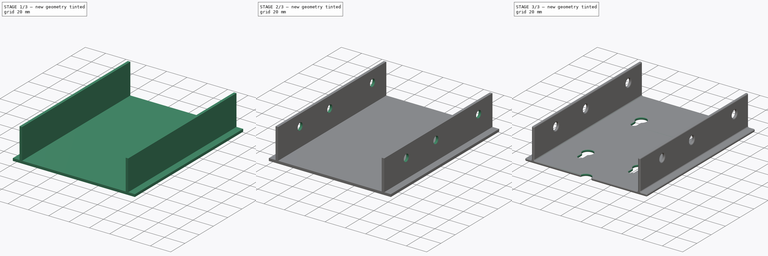
[diagram: build sequence overview — one tinted view per stage of 3, left to right]
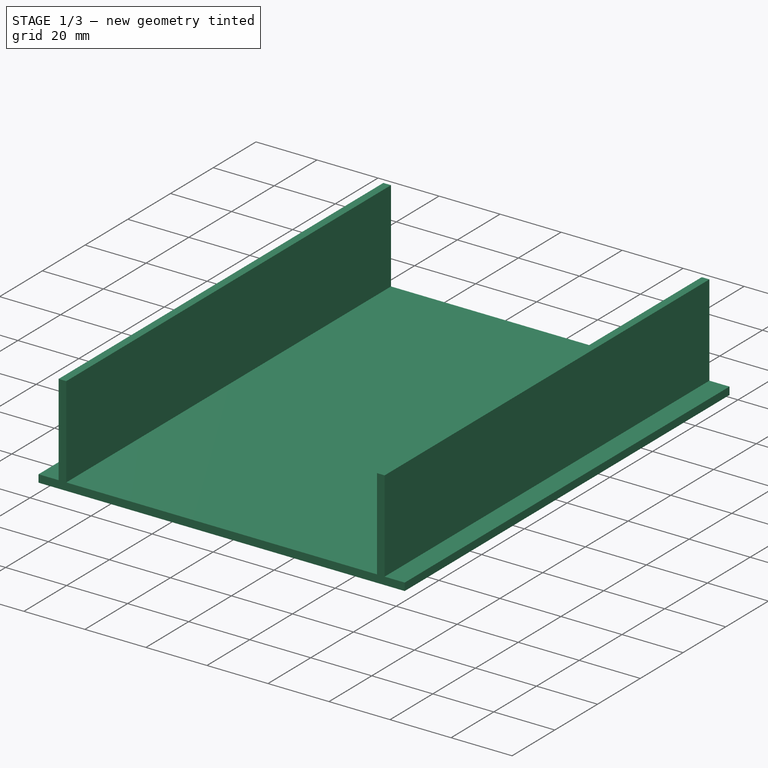
[diagram: stage 1 of 3 — iso view after this stage's code; geometry added in this stage tinted green]
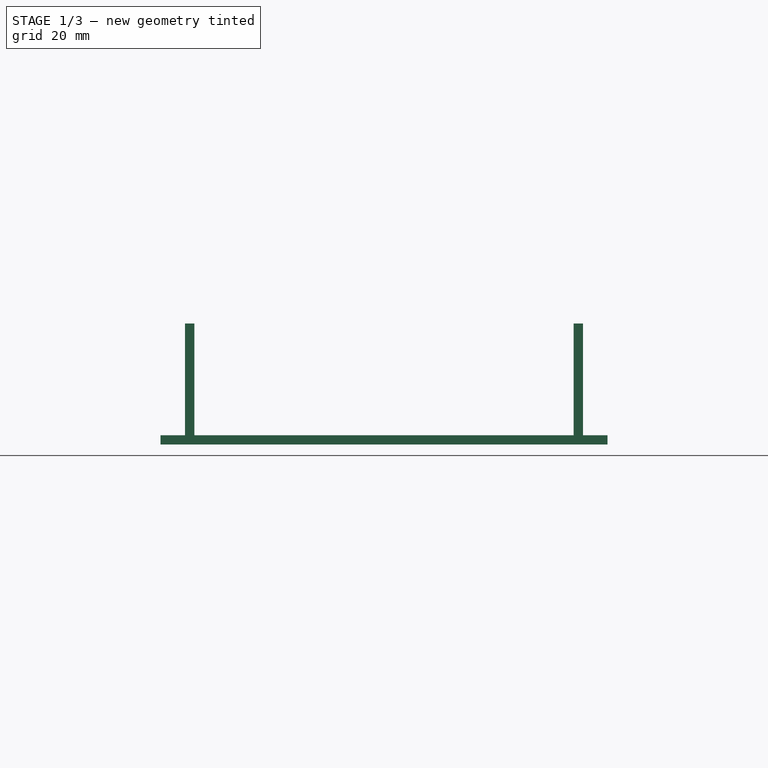
[diagram: stage 1 of 3 — front view after this stage's code; geometry added in this stage tinted green]
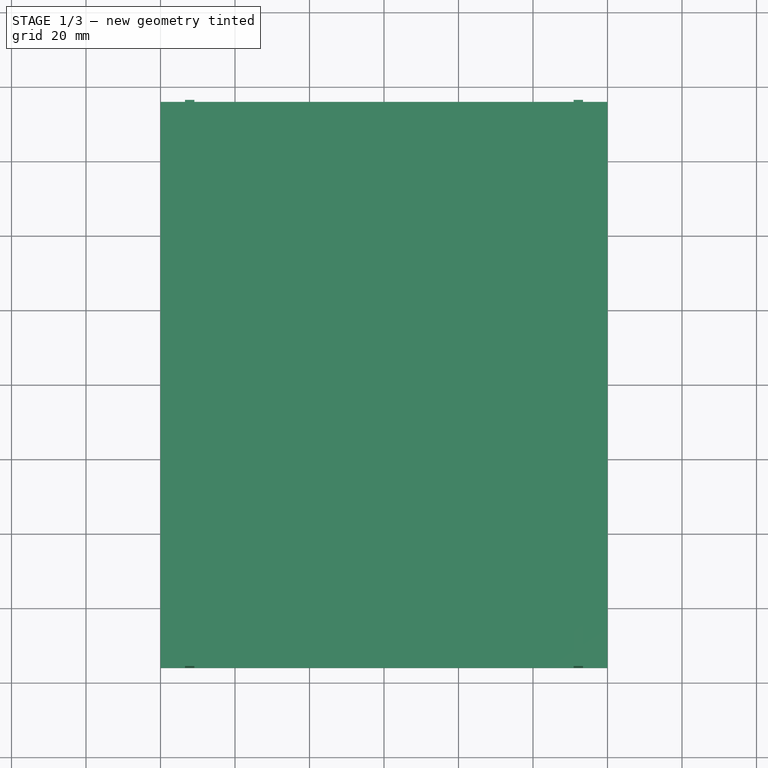
[diagram: stage 1 of 3 — top view after this stage's code; geometry added in this stage tinted green]
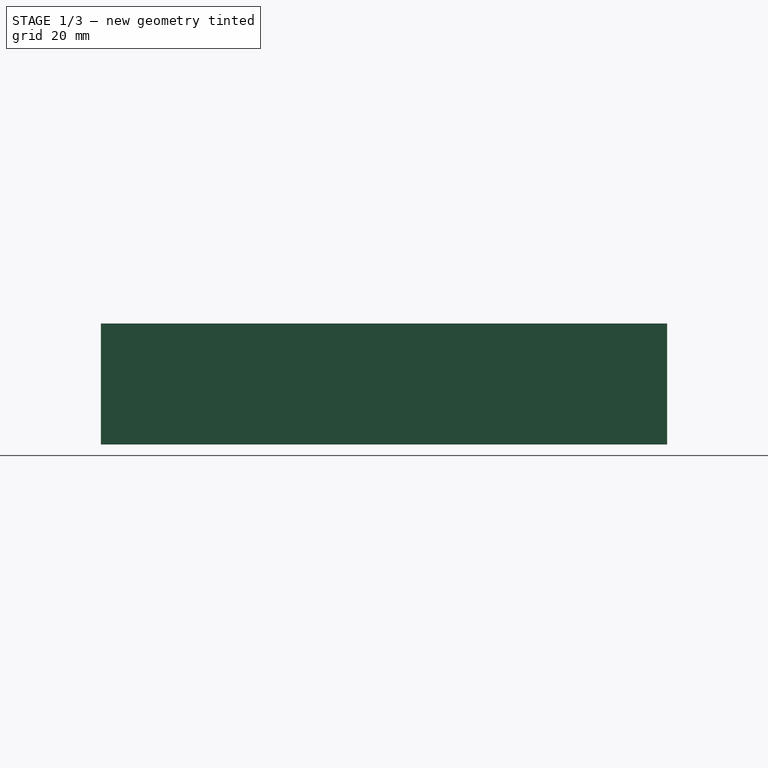
[diagram: stage 1 of 3 — right view after this stage's code; geometry added in this stage tinted green]
FCSTD DOCUMENT  (FreeCAD 1.1R20260325 (Git shallow))
Label: DriveMount
License: All rights reserved
LicenseURL: https://en.wikipedia.org/wiki/All_rights_reserved
objects: Sketcher::SketchObject×4, PartDesign::Pad×2, PartDesign::Pocket×2, App::Point×1, PartDesign::Fillet×1, PartDesign::Body×1
note: 24 computed .brp shape members not serialized (recipe doc carries the construction recipe); baked Part::Feature solids carry a one-line shape summary decoded from their .brp

FEATURE [App::Point] Origin001
  Role = Origin
FEATURE [Sketcher::SketchObject] Sketch  label="Base"
  ArcFitTolerance = 1e-06
  AttachmentSupport = -> [Origin]
  ExternalTypes = [0]
  FullyConstrained = true
  MakeInternals = false
  MapMode = 5
  _ExternalGeoVersion = 1
  sketch-geometry (10):
    g0: LineSegment StartX=-60 StartY=76 StartZ=0 EndX=-60 EndY=-76 EndZ=0
    g1: LineSegment StartX=-60 StartY=-76 StartZ=0 EndX=60 EndY=-76 EndZ=0
    g2: LineSegment StartX=60 StartY=-76 StartZ=0 EndX=60 EndY=76 EndZ=0
    g3: LineSegment StartX=60 StartY=76 StartZ=0 EndX=-60 EndY=76 EndZ=0
    g4: GeomPoint [constr] X=1e-16 Y=1e-16 Z=0
    g5: LineSegment [constr] StartX=-50.925 StartY=73.5 StartZ=0 EndX=-50.925 EndY=-73.5 EndZ=0
    g6: LineSegment [constr] StartX=-50.925 StartY=-73.5 StartZ=0 EndX=50.925 EndY=-73.5 EndZ=0
    g7: LineSegment [constr] StartX=50.925 StartY=-73.5 StartZ=0 EndX=50.925 EndY=73.5 EndZ=0
    g8: LineSegment [constr] StartX=50.925 StartY=73.5 StartZ=0 EndX=-50.925 EndY=73.5 EndZ=0
    g9: GeomPoint [constr] X=1e-16 Y=1e-16 Z=0
  constraints (24):
    c: Coincident(g0,g1)
    c: Coincident(g1,g2)
    c: Coincident(g2,g3)
    c: Coincident(g3,g0)
    c: Vertical(g0)
    c: Vertical(g2)
    c: Horizontal(g1)
    c: Horizontal(g3)
    c: Symmetric(g2,g0,g4)
    c: Coincident(g4,g-1)
    c: Coincident(g5,g6)
    c: Coincident(g6,g7)
    c: Coincident(g7,g8)
    c: Coincident(g8,g5)
    c: Vertical(g5)
    c: Vertical(g7)
    c: Horizontal(g6)
    c: Horizontal(g8)
    c: Symmetric(g7,g5,g9)
    c: Coincident(g9,g4)
    c: DistanceX(g8,g8) = 101.85
    c: DistanceY(g7,g7) = 147
    c: Distance(g3,g8) = 2.5
    c: DistanceX(g3,g3) = 120
FEATURE [PartDesign::Pad] Pad  label="BasePad"
  Direction = (0,0,1)
  Length = 2.5
  Length2 = 10
  Profile = -> Sketch
  ReferenceAxis = -> Sketch [N_Axis]
  Refine = true
  SideType = 0
  Suppressed = false
  Type = 0
  Type2 = 0
FEATURE [Sketcher::SketchObject] Sketch001  label="SideWalls"
  ArcFitTolerance = 1e-06
  AttachmentSupport = -> [Pad]
  ExternalGeometry = -> [Pad]
  ExternalTypes = [0,0,0,0]
  FullyConstrained = true
  MakeInternals = false
  MapMode = 5
  Placement = pos=(0,0,2.5) rot=(0,0,1;0rad)
  _ExternalGeoVersion = 1
  sketch-geometry (13):
    g0: LineSegment StartX=-53.425 StartY=76 StartZ=0 EndX=-53.425 EndY=-76 EndZ=0
    g1: LineSegment StartX=-53.425 StartY=-76 StartZ=0 EndX=-50.925 EndY=-76 EndZ=0
    g2: LineSegment StartX=-50.925 StartY=-76 StartZ=0 EndX=-50.925 EndY=76 EndZ=0
    g3: LineSegment StartX=-50.925 StartY=76 StartZ=0 EndX=-53.425 EndY=76 EndZ=0
    g4: LineSegment StartX=53.425 StartY=76 StartZ=0 EndX=50.925 EndY=76 EndZ=0
    g5: LineSegment StartX=50.925 StartY=76 StartZ=0 EndX=50.925 EndY=-76 EndZ=0
    g6: LineSegment StartX=50.925 StartY=-76 StartZ=0 EndX=53.425 EndY=-76 EndZ=0
    g7: LineSegment StartX=53.425 StartY=-76 StartZ=0 EndX=53.425 EndY=76 EndZ=0
    g8: LineSegment [constr] StartX=-53.425 StartY=76 StartZ=0 EndX=-53.425 EndY=-76 EndZ=0
    g9: LineSegment [constr] StartX=-53.425 StartY=-76 StartZ=0 EndX=53.425 EndY=-76 EndZ=0
    g10: LineSegment [constr] StartX=53.425 StartY=-76 StartZ=0 EndX=53.425 EndY=76 EndZ=0
    g11: LineSegment [constr] StartX=53.425 StartY=76 StartZ=0 EndX=-53.425 EndY=76 EndZ=0
    g12: GeomPoint [constr] X=0 Y=0 Z=0
  constraints (34):
    c: Vertical(g0)
    c: Vertical(g2)
    c: Horizontal(g1)
    c: Horizontal(g3)
    c: Horizontal(g4)
    c: Horizontal(g6)
    c: Vertical(g5)
    c: Vertical(g7)
    c: Distance(g3,g3) = 2.5
    c: Distance(g4,g4) = 2.5
    c: Coincident(g8,g9)
    c: Coincident(g9,g10)
    c: Coincident(g10,g11)
    c: Coincident(g11,g8)
    c: Vertical(g8)
    c: Vertical(g10)
    c: Horizontal(g9)
    c: Horizontal(g11)
    c: Symmetric(g10,g8,g12)
    c: Coincident(g12,g-1)
    c: DistanceX(g9,g9) = 106.85
    c: Coincident(g3,g0)
    c: Coincident(g3,g2)
    c: Coincident(g2,g1)
    c: Coincident(g0,g1)
    c: Coincident(g4,g7)
    c: Coincident(g4,g5)
    c: Coincident(g6,g5)
    c: Coincident(g6,g7)
    c: Coincident(g4,g10)
    c: Coincident(g0,g8)
    c: PointOnObject(g9,g-4)
    c: PointOnObject(g1,g9)
    c: PointOnObject(g5,g9)
FEATURE [PartDesign::Pad] Pad001  label="SideWallsPad"
  BaseFeature = -> Pad
  Direction = (0,0,1)
  Length = 30
  Length2 = 10
  Profile = -> Sketch001
  ReferenceAxis = -> Sketch001 [N_Axis]
  Refine = true
  SideType = 0
  Suppressed = false
  Type = 0
  Type2 = 0
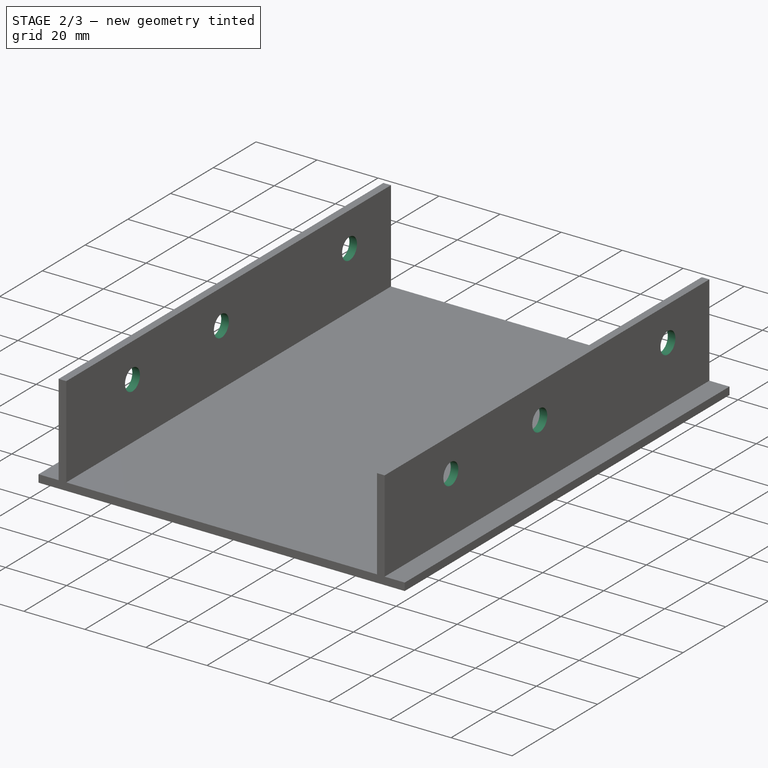
[diagram: stage 2 of 3 — iso view after this stage's code; geometry added in this stage tinted green]
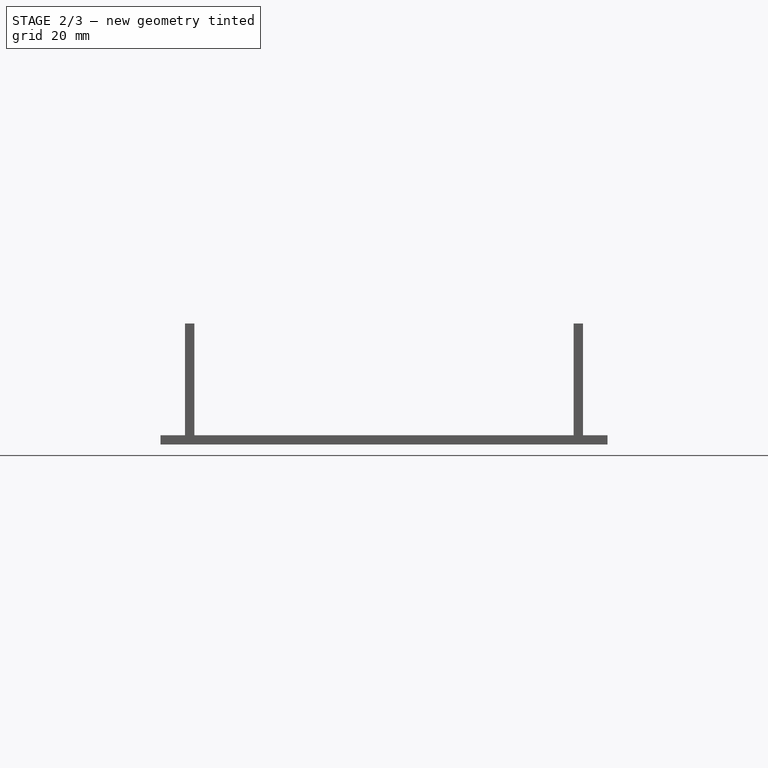
[diagram: stage 2 of 3 — front view after this stage's code; geometry added in this stage tinted green]
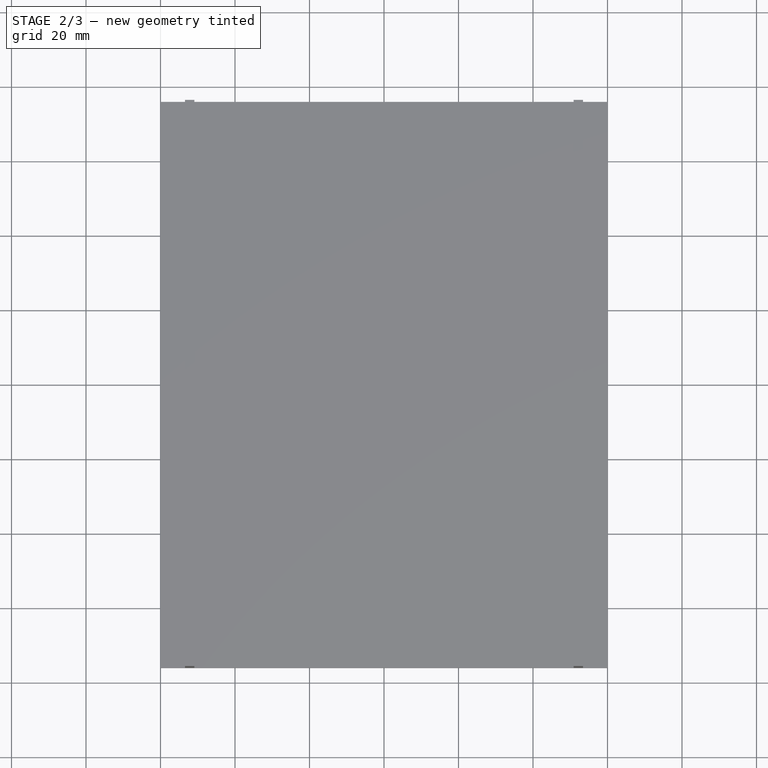
[diagram: stage 2 of 3 — top view after this stage's code; geometry added in this stage tinted green]
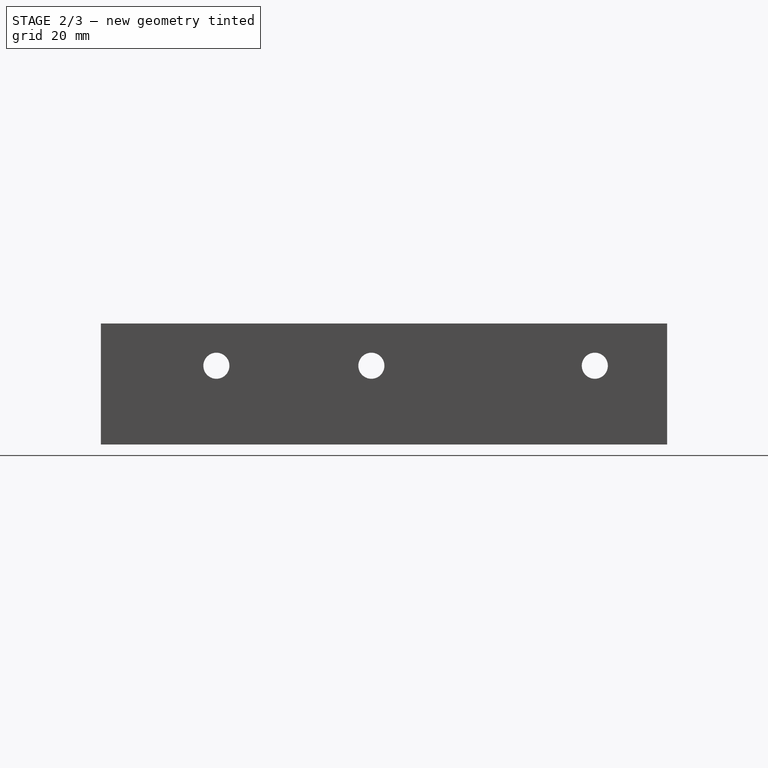
[diagram: stage 2 of 3 — right view after this stage's code; geometry added in this stage tinted green]
FEATURE [Sketcher::SketchObject] Sketch002  label="SideHoles"
  ArcFitTolerance = 1e-06
  AttachmentSupport = -> [Pad001]
  ExternalGeometry = -> [Pad001]
  ExternalTypes = [0,0,0]
  FullyConstrained = true
  MakeInternals = false
  MapMode = 5
  Placement = pos=(53.425,0,0) rot=(0.57735,0.57735,0.57735;2.0944rad)
  _ExternalGeoVersion = 1
  sketch-geometry (9):
    g0: LineSegment [constr] StartX=-73.5 StartY=35 StartZ=0 EndX=-73.5 EndY=14.8 EndZ=0
    g1: LineSegment [constr] StartX=-73.5 StartY=14.8 StartZ=0 EndX=73.5 EndY=14.8 EndZ=0
    g2: LineSegment [constr] StartX=73.5 StartY=14.8 StartZ=0 EndX=73.5 EndY=35 EndZ=0
    g3: LineSegment [constr] StartX=73.5 StartY=35 StartZ=0 EndX=-73.5 EndY=35 EndZ=0
    g4: GeomPoint [constr] X=0 Y=24.9 Z=0
    g5: LineSegment [constr] StartX=-73.5 StartY=21.15 StartZ=0 EndX=73.5 EndY=21.15 EndZ=0
    g6: Circle CenterX=-45 CenterY=21.15 CenterZ=0 NormalX=0 NormalY=0 NormalZ=1 AngleXU=0 Radius=3.5
    g7: Circle CenterX=-3.39 CenterY=21.15 CenterZ=0 NormalX=0 NormalY=0 NormalZ=1 AngleXU=0 Radius=3.5
    g8: Circle CenterX=56.6 CenterY=21.15 CenterZ=0 NormalX=0 NormalY=0 NormalZ=1 AngleXU=0 Radius=3.5
  constraints (26):
    c: Coincident(g0,g1)
    c: Coincident(g1,g2)
    c: Coincident(g2,g3)
    c: Coincident(g3,g0)
    c: Vertical(g0)
    c: Vertical(g2)
    c: Horizontal(g1)
    c: Horizontal(g3)
    c: Symmetric(g2,g0,g4)
    c: PointOnObject(g4,g-2)
    c: DistanceX(g1,g1) = 147
    c: DistanceY(g2,g2) = 20.2
    c: Distance(g-3,g3) = 2.5
    c: PointOnObject(g5,g0)
    c: PointOnObject(g5,g2)
    c: Horizontal(g5)
    c: Distance(g1,g5) = 6.35
    c: PointOnObject(g6,g5)
    c: PointOnObject(g7,g5)
    c: PointOnObject(g8,g5)
    c: Diameter(g6) = 7
    c: Diameter(g7) = 7
    c: Diameter(g8) = 7
    c: Distance(g6,g0) = 28.5
    c: DistanceX(g6,g7) = 41.61
    c: DistanceX(g6,g8) = 101.6
FEATURE [PartDesign::Pocket] Pocket  label="SideHolesPocket"
  BaseFeature = -> Pad001
  Direction = (-1,0,0)
  Length = 5
  Length2 = 5
  Profile = -> Sketch002
  ReferenceAxis = -> Sketch002 [N_Axis]
  Refine = true
  SideType = 0
  Suppressed = false
  Type = 1
  Type2 = 0
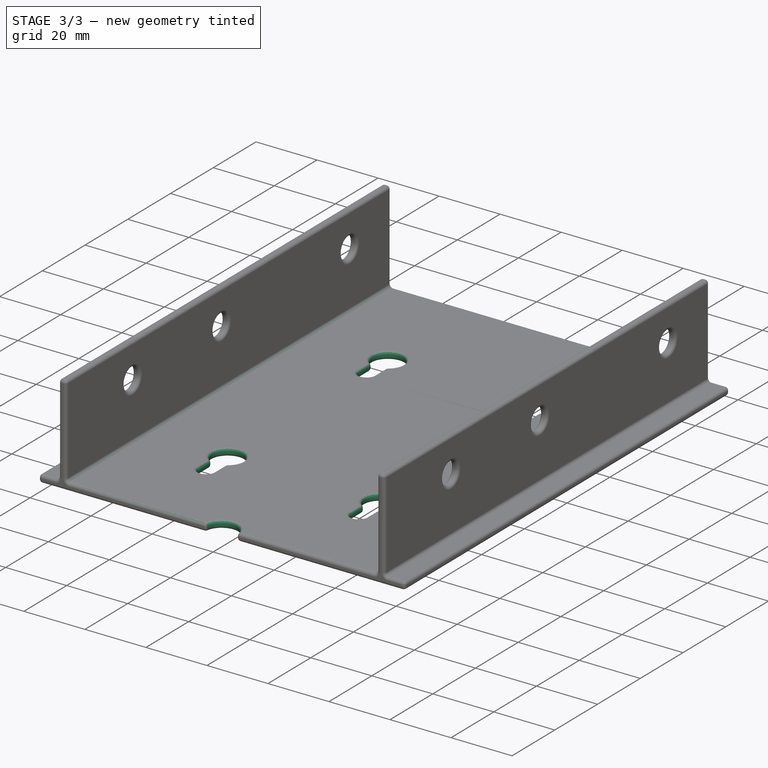
[diagram: stage 3 of 3 — iso view after this stage's code; geometry added in this stage tinted green]
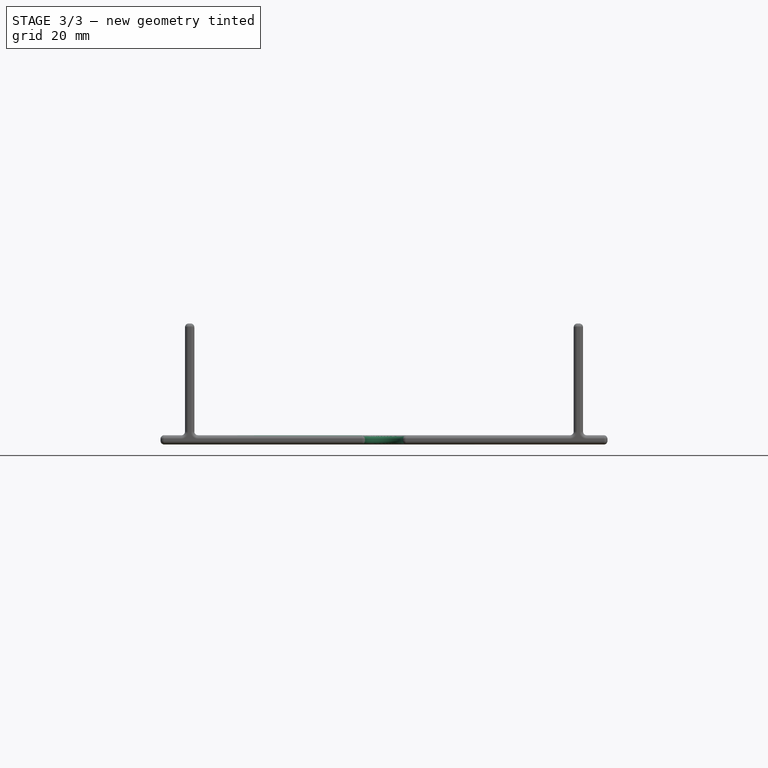
[diagram: stage 3 of 3 — front view after this stage's code; geometry added in this stage tinted green]
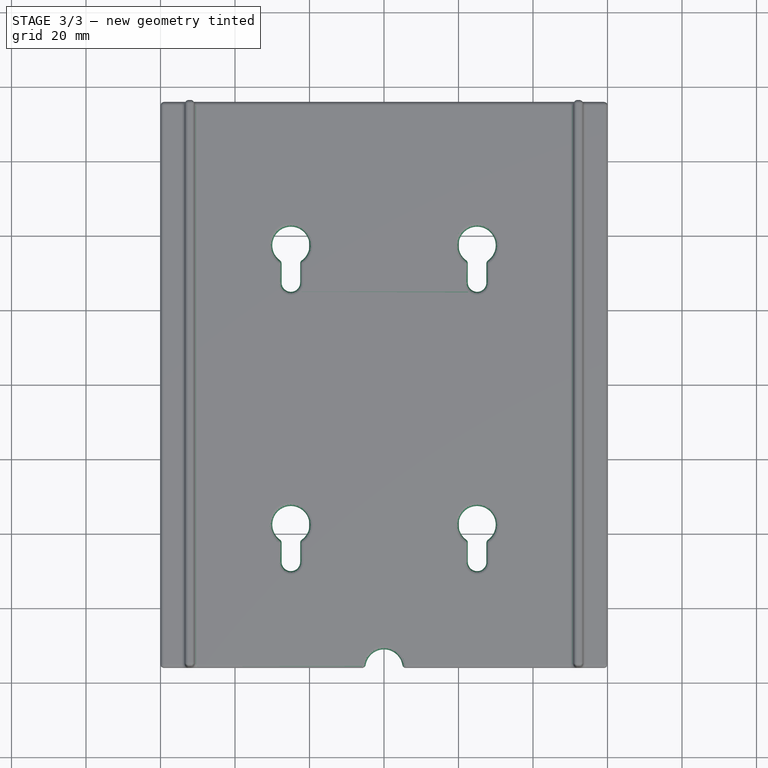
[diagram: stage 3 of 3 — top view after this stage's code; geometry added in this stage tinted green]
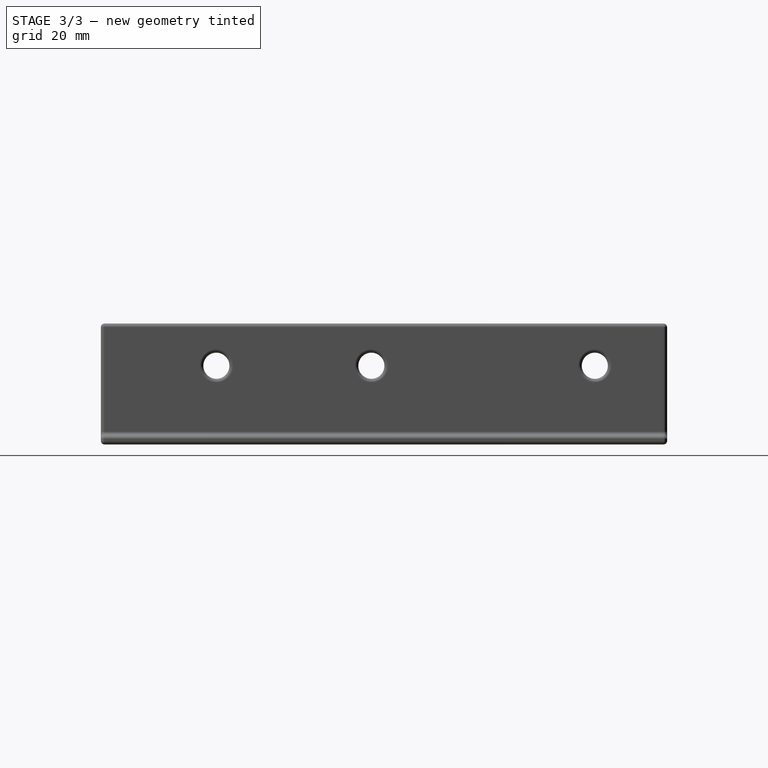
[diagram: stage 3 of 3 — right view after this stage's code; geometry added in this stage tinted green]
FEATURE [Sketcher::SketchObject] Sketch003  label="MountHoles"
  ArcFitTolerance = 1e-06
  AttachmentSupport = -> [Pocket]
  ExternalTypes = [0]
  FullyConstrained = true
  MakeInternals = false
  MapMode = 5
  Placement = pos=(0,0,2.5) rot=(0,0,1;0rad)
  _ExternalGeoVersion = 1
  sketch-geometry (28):
    g0: LineSegment [constr] StartX=-25 StartY=37.5 StartZ=0 EndX=-25 EndY=-37.5 EndZ=0
    g1: LineSegment [constr] StartX=-25 StartY=-37.5 StartZ=0 EndX=25 EndY=-37.5 EndZ=0
    g2: LineSegment [constr] StartX=25 StartY=-37.5 StartZ=0 EndX=25 EndY=37.5 EndZ=0
    g3: LineSegment [constr] StartX=25 StartY=37.5 StartZ=0 EndX=-25 EndY=37.5 EndZ=0
    g4: GeomPoint [constr] X=0 Y=0 Z=0
    g5: Circle CenterX=-25 CenterY=37.5 CenterZ=0 NormalX=0 NormalY=0 NormalZ=1 AngleXU=0 Radius=5
    g6: Circle CenterX=25 CenterY=37.5 CenterZ=0 NormalX=0 NormalY=0 NormalZ=1 AngleXU=0 Radius=5
    g7: Circle CenterX=25 CenterY=-37.5 CenterZ=0 NormalX=0 NormalY=0 NormalZ=1 AngleXU=0 Radius=5
    g8: Circle CenterX=-25 CenterY=-37.5 CenterZ=0 NormalX=0 NormalY=0 NormalZ=1 AngleXU=0 Radius=5
    g9: LineSegment [constr] StartX=-25 StartY=-37.5 StartZ=0 EndX=-25 EndY=-76 EndZ=0
    g10: LineSegment [constr] StartX=25 StartY=-37.5 StartZ=0 EndX=25 EndY=-76 EndZ=0
    g11: ArcOfCircle CenterX=-25 CenterY=37.5 CenterZ=0 NormalX=0 NormalY=0 NormalZ=1 AngleXU=0 Radius=2.5 StartAngle=0 EndAngle=3.14159
    g12: ArcOfCircle CenterX=-25 CenterY=27.5 CenterZ=0 NormalX=0 NormalY=0 NormalZ=1 AngleXU=0 Radius=2.5 StartAngle=3.14159 EndAngle=6.28319
    g13: LineSegment StartX=-22.5 StartY=37.5 StartZ=0 EndX=-22.5 EndY=27.5 EndZ=0
    g14: LineSegment StartX=-27.5 StartY=37.5 StartZ=0 EndX=-27.5 EndY=27.5 EndZ=0
    g15: ArcOfCircle CenterX=25 CenterY=37.5 CenterZ=0 NormalX=0 NormalY=0 NormalZ=1 AngleXU=0 Radius=2.5 StartAngle=7e-16 EndAngle=3.14159
    g16: ArcOfCircle CenterX=25 CenterY=27.5 CenterZ=0 NormalX=0 NormalY=0 NormalZ=1 AngleXU=0 Radius=2.5 StartAngle=3.14159 EndAngle=6.28319
    g17: LineSegment StartX=27.5 StartY=37.5 StartZ=0 EndX=27.5 EndY=27.5 EndZ=0
    g18: LineSegment StartX=22.5 StartY=37.5 StartZ=0 EndX=22.5 EndY=27.5 EndZ=0
    g19: ArcOfCircle CenterX=25 CenterY=-37.5 CenterZ=0 NormalX=0 NormalY=0 NormalZ=1 AngleXU=0 Radius=2.5 StartAngle=1e-16 EndAngle=3.14159
    g20: ArcOfCircle CenterX=25 CenterY=-47.5 CenterZ=0 NormalX=0 NormalY=0 NormalZ=1 AngleXU=0 Radius=2.5 StartAngle=3.14159 EndAngle=6.28319
    g21: LineSegment StartX=27.5 StartY=-37.5 StartZ=0 EndX=27.5 EndY=-47.5 EndZ=0
    g22: LineSegment StartX=22.5 StartY=-37.5 StartZ=0 EndX=22.5 EndY=-47.5 EndZ=0
    g23: ArcOfCircle CenterX=-25 CenterY=-37.5 CenterZ=0 NormalX=0 NormalY=0 NormalZ=1 AngleXU=0 Radius=2.5 StartAngle=1.3e-15 EndAngle=3.14159
    g24: ArcOfCircle CenterX=-25 CenterY=-47.5 CenterZ=0 NormalX=0 NormalY=0 NormalZ=1 AngleXU=0 Radius=2.5 StartAngle=3.14159 EndAngle=6.28319
    g25: LineSegment StartX=-22.5 StartY=-37.5 StartZ=0 EndX=-22.5 EndY=-47.5 EndZ=0
    g26: LineSegment StartX=-27.5 StartY=-37.5 StartZ=0 EndX=-27.5 EndY=-47.5 EndZ=0
    g27: Circle CenterX=0 CenterY=-76 CenterZ=0 NormalX=0 NormalY=0 NormalZ=1 AngleXU=0 Radius=5
  constraints (65):
    c: Coincident(g0,g1)
    c: Coincident(g1,g2)
    c: Coincident(g2,g3)
    c: Coincident(g3,g0)
    c: Vertical(g0)
    c: Vertical(g2)
    c: Horizontal(g1)
    c: Horizontal(g3)
    c: Symmetric(g2,g0,g4)
    c: Coincident(g4,g-1)
    c: DistanceX(g1,g1) = 50
    c: DistanceY(g2,g2) = 75
    c: Coincident(g5,g0)
    c: Coincident(g6,g2)
    c: Coincident(g7,g1)
    c: Coincident(g8,g0)
    c: Diameter(g8) = 10
    c: Diameter(g7) = 10
    c: Diameter(g6) = 10
    c: Diameter(g5) = 10
    c: Coincident(g9,g0)
    c: PointOnObject(g9,g-3)
    c: Vertical(g9)
    c: Coincident(g10,g1)
    c: PointOnObject(g10,g-3)
    c: Vertical(g10)
    c: Tangent(g11,g13) = 1.5708
    c: Tangent(g11,g14) = -1.5708
    c: Tangent(g12,g13) = 1.5708
    c: Tangent(g12,g14) = -1.5708
    c: Equal(g11,g12)
    c: Coincident(g11,g0)
    c: PointOnObject(g12,g0)
    c: Tangent(g15,g17) = 1.5708
    c: Tangent(g15,g18) = -1.5708
    c: Tangent(g16,g17) = 1.5708
    c: Tangent(g16,g18) = -1.5708
    c: Equal(g15,g16)
    c: Coincident(g15,g2)
    c: PointOnObject(g16,g2)
    c: Tangent(g19,g21) = 1.5708
    c: Tangent(g19,g22) = -1.5708
    c: Tangent(g20,g21) = 1.5708
    c: Tangent(g20,g22) = -1.5708
    c: Equal(g19,g20)
    c: Coincident(g19,g1)
    c: PointOnObject(g20,g10)
    c: Tangent(g23,g25) = 1.5708
    c: Tangent(g23,g26) = -1.5708
    c: Tangent(g24,g25) = 1.5708
    c: Tangent(g24,g26) = -1.5708
    c: Equal(g23,g24)
    c: Coincident(g23,g0)
    c: PointOnObject(g24,g9)
    c: Radius(g12) = 2.5
    c: Radius(g16) = 2.5
    c: Radius(g24) = 2.5
    c: Radius(g20) = 2.5
    c: Distance(g13,g13) = 10
    c: Distance(g18,g18) = 10
    c: Distance(g25,g25) = 10
    c: Distance(g22,g22) = 10
    c: PointOnObject(g27,g-2)
    c: Diameter(g27) = 10
    c: PointOnObject(g27,g-3)
FEATURE [PartDesign::Pocket] Pocket001  label="MountHolesPocket"
  BaseFeature = -> Pocket
  Direction = (0,0,-1)
  Length = 5
  Length2 = 5
  Profile = -> Sketch003
  ReferenceAxis = -> Sketch003 [N_Axis]
  Refine = true
  SideType = 0
  Suppressed = false
  Type = 1
  Type2 = 0
FEATURE [PartDesign::Fillet] Fillet
  Base = -> Pocket001
  BaseFeature = -> Pocket001
  Radius = 1
  Refine = true
  SupportTransform = false
  Suppressed = false
  UseAllEdges = true
FEATURE [PartDesign::Body] Body  label="Frame"
  AllowCompound = true
  Group = -> [Sketch,Pad,Sketch001,Pad001,Sketch002,Pocket,Sketch003,Pocket001,Fillet]
  Origin = -> Origin
  Tip = -> Fillet
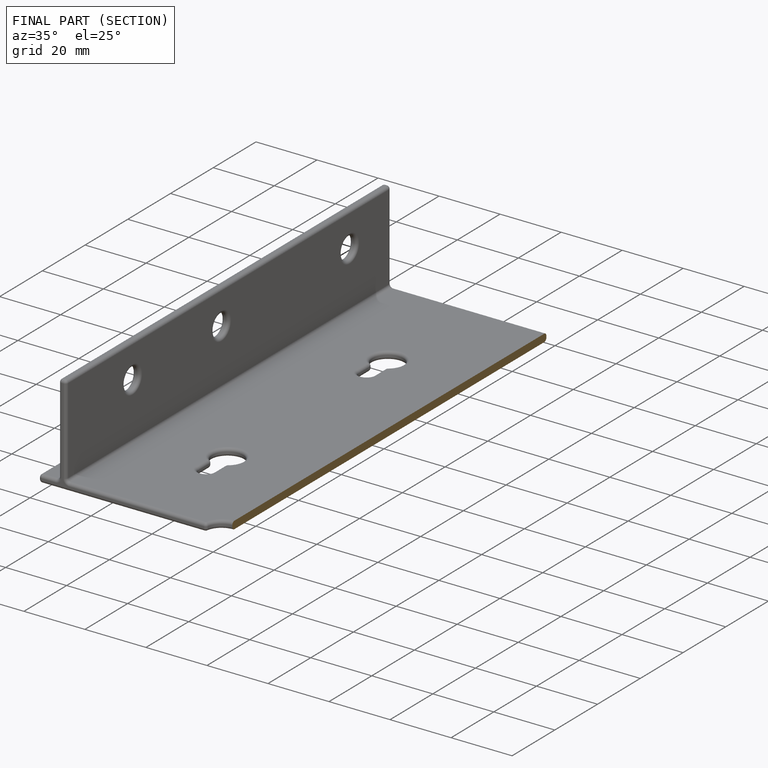
[diagram: finished part — half-section view (interior)]
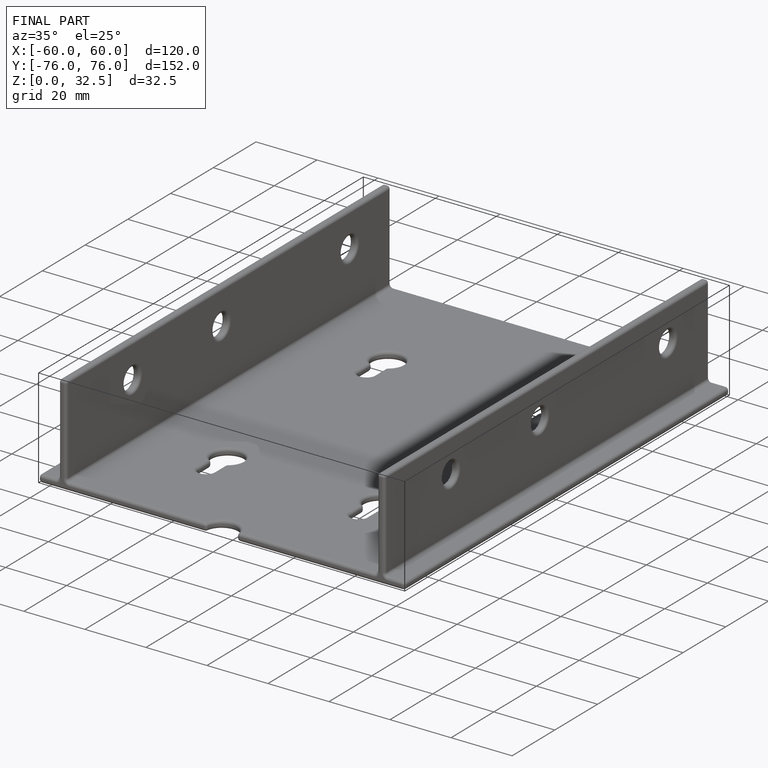
[diagram: finished part — iso view with bounding-box wireframe]
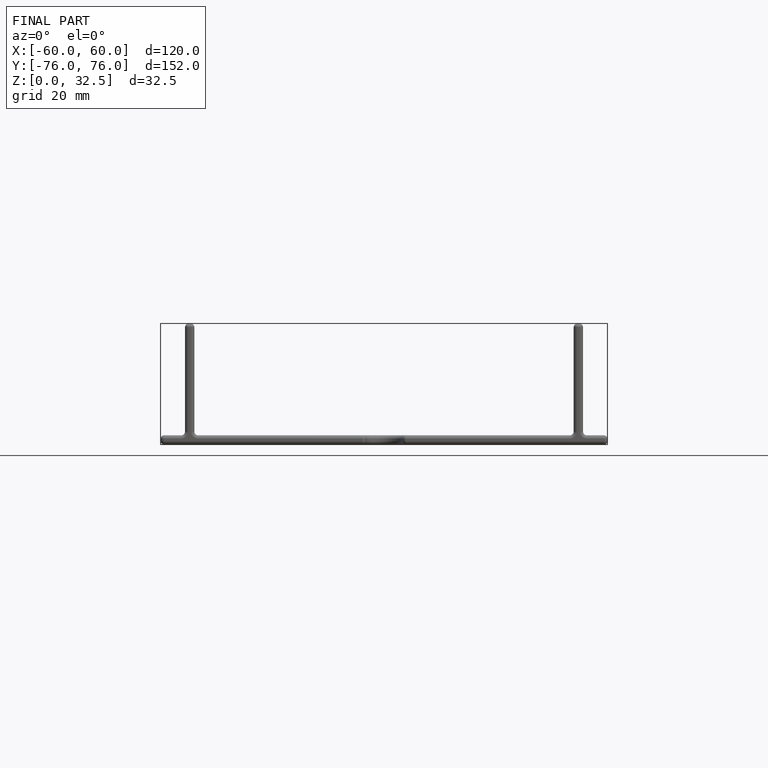
[diagram: finished part — front view with bounding-box wireframe]
